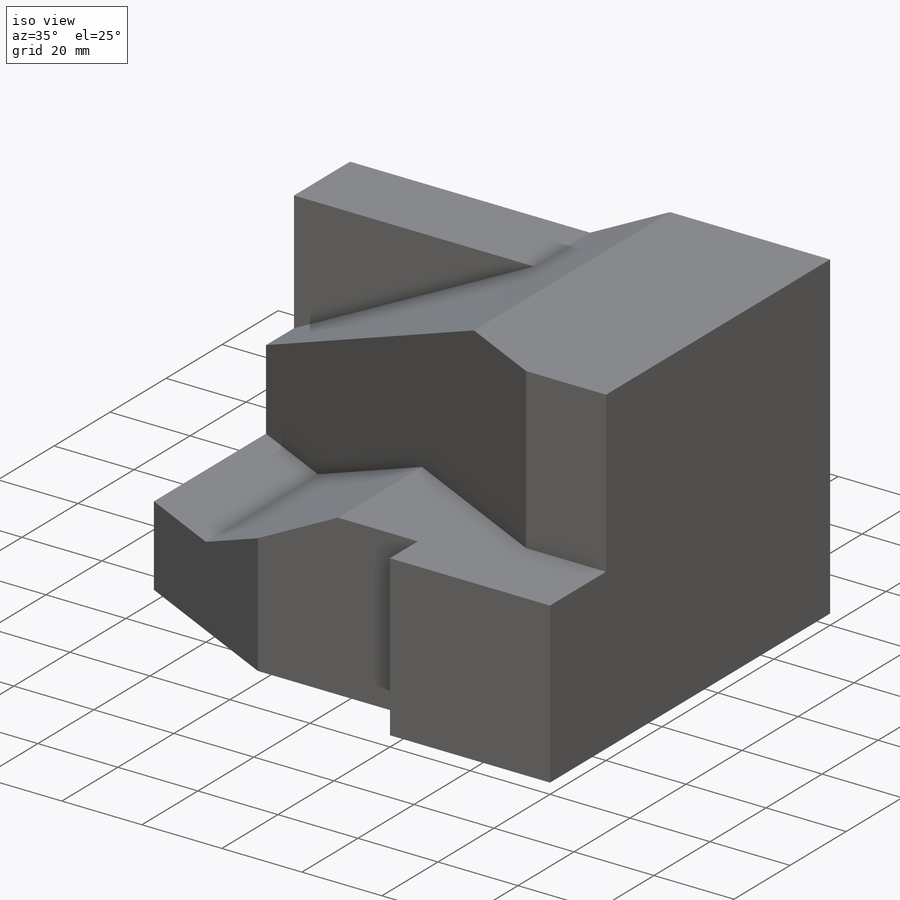
[diagram: iso view]
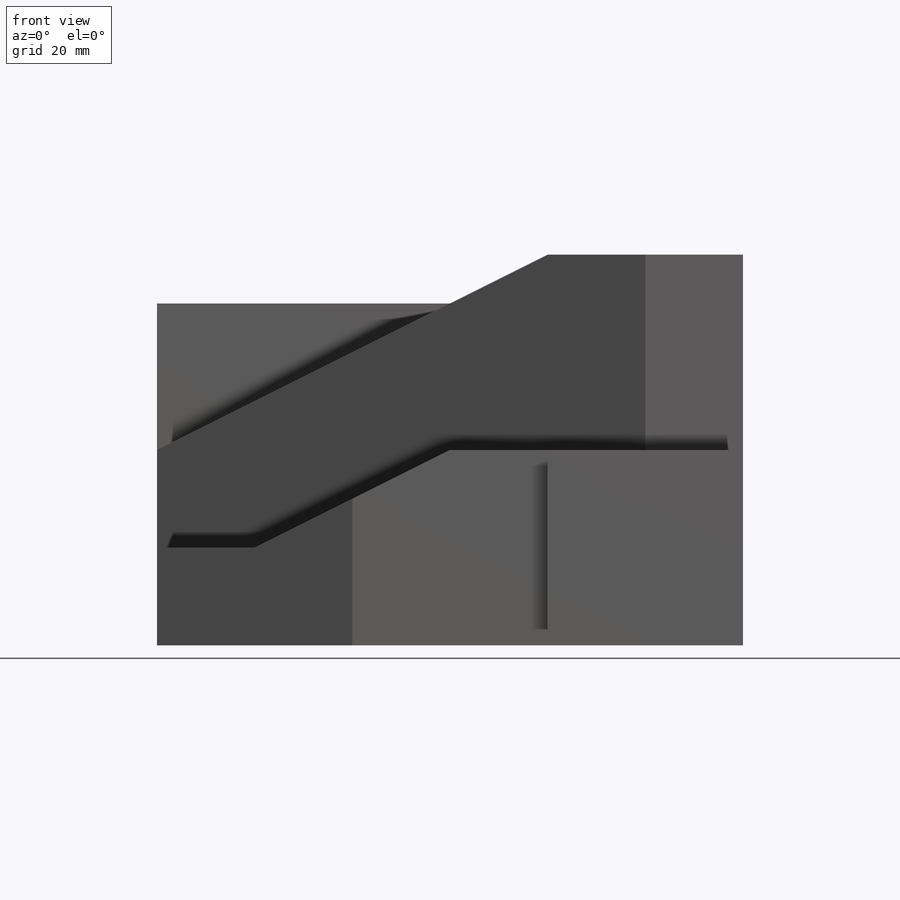
[diagram: front view]
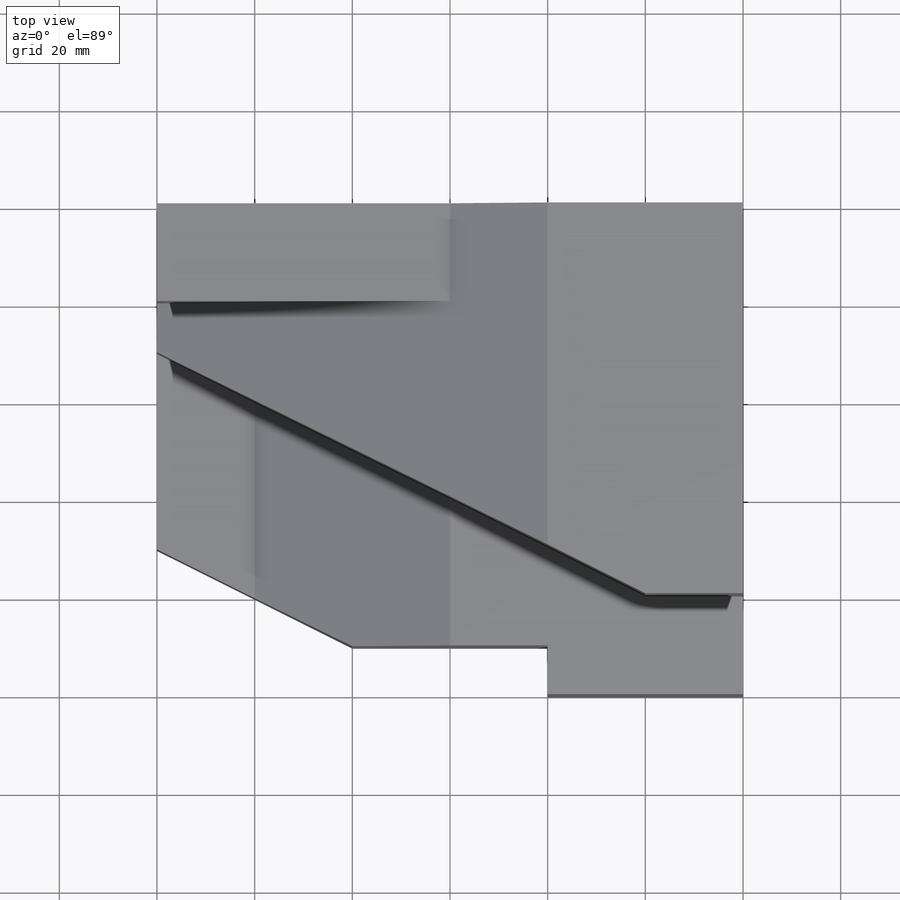
[diagram: top view]
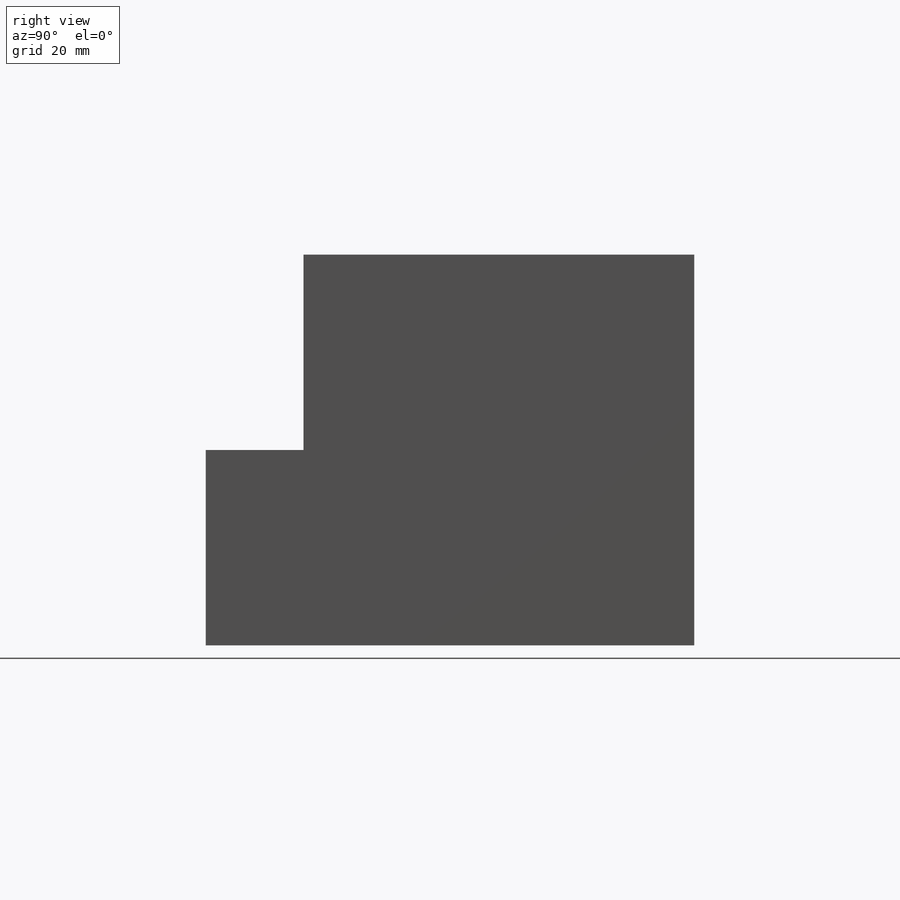
[diagram: right view]
SOLIDWORKS PART (.sldprt)
format: sldprt  version: not decoded by parser v0  size: 324,608 bytes
history: native  units: mm
features: sketch x17, extrude x14, plane x5, cut_extrude x2, material x1 (+13 scaffold rows collapsed)
feature tree (52):
  scaffold x13  (default folders/planes/origin — collapsed)
  material  "Material <not specified>"
  sketch  "Sketch1"  dims[D1=120.0mm D2=100.0mm]
  extrude  "Boss-Extrude1"  Depth=20mm
  sketch  "Sketch2"  dims[D1=30.0mm D2=10.0mm D3=40.0mm D4=20.0mm D5=40.0mm]
  cut_extrude  "Cut-Extrude1"  Depth=20mm
  sketch  "Sketch3"  dims[D1=40.0mm D2=40.0mm]
  extrude  "Boss-Extrude3"  Depth=100mm
  sketch  "Sketch4"  dims[D1=20.0mm D2=20.0mm D3=10.0mm]
  extrude  "Boss-Extrude4"  Depth=90mm
  plane  "Plane1"  Offset=20mm
  sketch  "Sketch5"  dims[D1=20.0mm D2=40.0mm]
  extrude  "Boss-Extrude6"  Depth=80mm
  sketch  "Sketch6"  dims[D1=20.0mm D2=10.0mm]
  extrude  "Boss-Extrude7"  Depth=80mm
  sketch  "Sketch7"  dims[D1=60.0mm D2=50.0mm]
  extrude  "Boss-Extrude8"  Depth=20mm
  sketch  "Sketch8"  dims[D1=10.0mm D2=20.0mm]
  extrude  "Boss-Extrude9"  Depth=10mm
  plane  "Plane2"
  sketch  "Sketch9"
  extrude  "Boss-Extrude10"  Depth=42mm
  sketch  "Sketch11"
  extrude  "Boss-Extrude18"  Depth=42mm
  plane  "Plane3"
  sketch  "Sketch12"
  extrude  "Boss-Extrude19"  Depth=30mm
  plane  "Plane4"
  sketch  "Sketch17"
  extrude  "Boss-Extrude21"  Depth=30mm
  sketch  "Sketch18"
  plane  "Plane5"
  sketch  "Sketch19"
  extrude  "Boss-Extrude22"  Depth=30mm
  sketch  "Sketch20"
  extrude  "Boss-Extrude23"  Depth=30mm
  sketch  "Sketch21"
  extrude  "Boss-Extrude24"  Depth=30mm
  sketch  "Sketch22"
  cut_extrude  "Cut-Extrude3"  Depth=30mm
decode coverage: 24 of 33 modeling features carry decoded parameters
note: suppression state not decoded; provenance and decode notes live in map.json
